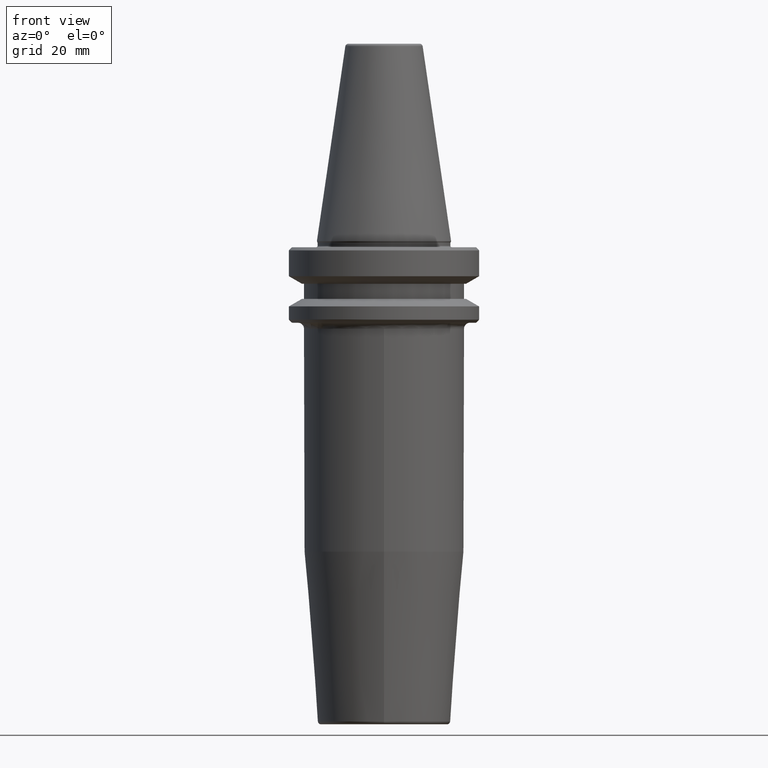
[diagram: clean part render]
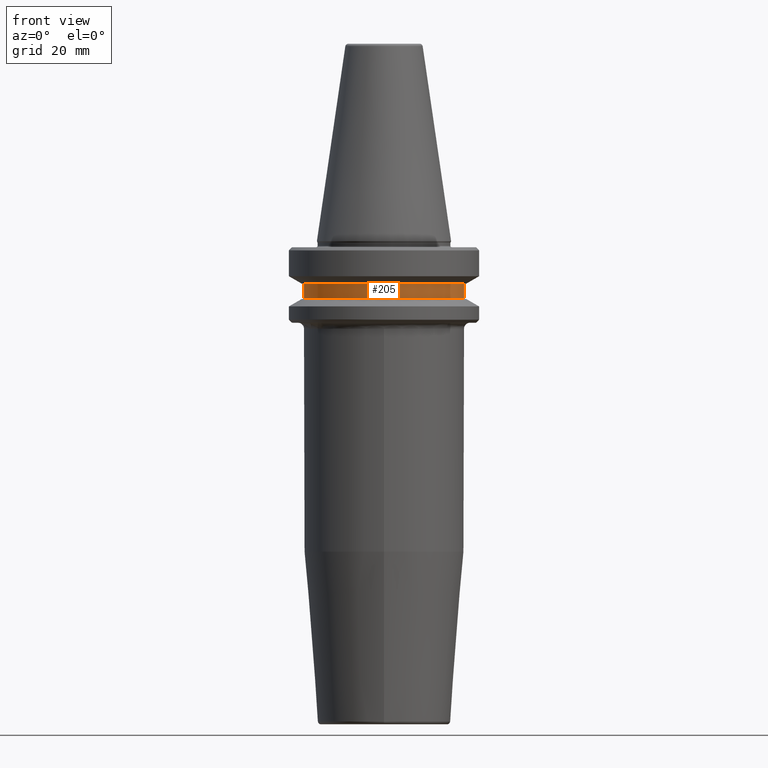
[diagram: same view with one face highlighted and labeled with its STEP entity id]
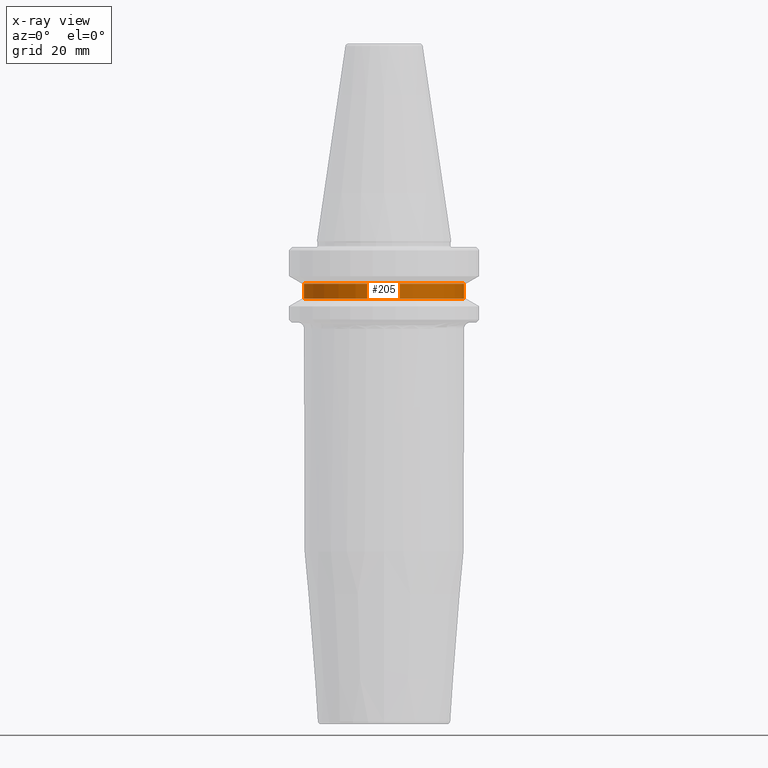
[diagram: x-ray of the same camera — body ghosted, the highlighted face saturated]
A machine part, front view. The second image highlights one B-rep face of the part: STEP entity #205.
The next image is the same camera in x-ray: the body ghosted, the highlighted face saturated — about 0% of this face is hidden behind the body in this view.
In plain terms, the highlighted cylindrical surface (partial cylindrical patch) has radius 26.5 mm, axis along (-0, -0, 1).
Its self-contained STEP definition (entity closure, byte-faithful):
#73 = CIRCLE ( 'NONE', #947, 26.50000000000000000 ) ;
#103 = ORIENTED_EDGE ( 'NONE', *, *, #201, .T. ) ;
#111 = EDGE_CURVE ( 'NONE', #567, #152, #73, .T. ) ;
#121 = EDGE_LOOP ( 'NONE', ( #484, #1139, #103, #215 ) ) ;
#152 = VERTEX_POINT ( 'NONE', #868 ) ;
#162 = DIRECTION ( 'NONE',  ( -0.0000000000000000000, -0.0000000000000000000, 1.000000000000000000 ) ) ;
#192 = DIRECTION ( 'NONE',  ( -0.0000000000000000000, -0.0000000000000000000, 1.000000000000000000 ) ) ;
#201 = EDGE_CURVE ( 'NONE', #152, #722, #777, .T. ) ;
#205 = ADVANCED_FACE ( 'NONE', ( #1232 ), #717, .T. ) ;
#206 = LINE ( 'NONE', #958, #1197 ) ;
#215 = ORIENTED_EDGE ( 'NONE', *, *, #1223, .F. ) ;
#364 = VERTEX_POINT ( 'NONE', #1231 ) ;
#405 = AXIS2_PLACEMENT_3D ( 'NONE', #788, #192, #1273 ) ;
#484 = ORIENTED_EDGE ( 'NONE', *, *, #1265, .F. ) ;
#486 = VECTOR ( 'NONE', #985, 1000.000000000000000 ) ;
#564 = CARTESIAN_POINT ( 'NONE',  ( 0.0000000000000000000, 0.0000000000000000000, -19.10000000000000500 ) ) ;
#567 = VERTEX_POINT ( 'NONE', #1056 ) ;
#572 = CARTESIAN_POINT ( 'NONE',  ( 0.0000000000000000000, 0.0000000000000000000, -14.10000000000000100 ) ) ;
#671 = DIRECTION ( 'NONE',  ( 1.000000000000000000, 0.0000000000000000000, 0.0000000000000000000 ) ) ;
#674 = DIRECTION ( 'NONE',  ( -0.0000000000000000000, -0.0000000000000000000, 1.000000000000000000 ) ) ;
#687 = AXIS2_PLACEMENT_3D ( 'NONE', #572, #1249, #671 ) ;
#717 = CYLINDRICAL_SURFACE ( 'NONE', #405, 26.50000000000000000 ) ;
#722 = VERTEX_POINT ( 'NONE', #1177 ) ;
#737 = DIRECTION ( 'NONE',  ( 1.000000000000000000, 0.0000000000000000000, 0.0000000000000000000 ) ) ;
#777 = LINE ( 'NONE', #791, #486 ) ;
#788 = CARTESIAN_POINT ( 'NONE',  ( 0.0000000000000000000, 0.0000000000000000000, 69.75694866325665100 ) ) ;
#791 = CARTESIAN_POINT ( 'NONE',  ( 26.50000000000000000, 0.0000000000000000000, 69.75694866325665100 ) ) ;
#868 = CARTESIAN_POINT ( 'NONE',  ( 26.50000000000000000, 0.0000000000000000000, -19.10000000000000500 ) ) ;
#947 = AXIS2_PLACEMENT_3D ( 'NONE', #564, #162, #737 ) ;
#958 = CARTESIAN_POINT ( 'NONE',  ( -26.50000000000000000, 3.245314017740485800E-015, 69.75694866325665100 ) ) ;
#964 = CIRCLE ( 'NONE', #687, 26.50000000000000000 ) ;
#985 = DIRECTION ( 'NONE',  ( -0.0000000000000000000, -0.0000000000000000000, 1.000000000000000000 ) ) ;
#1056 = CARTESIAN_POINT ( 'NONE',  ( -26.50000000000000000, 3.245314017740485800E-015, -19.10000000000000500 ) ) ;
#1139 = ORIENTED_EDGE ( 'NONE', *, *, #111, .T. ) ;
#1177 = CARTESIAN_POINT ( 'NONE',  ( 26.50000000000000000, 0.0000000000000000000, -14.10000000000000100 ) ) ;
#1197 = VECTOR ( 'NONE', #674, 1000.000000000000000 ) ;
#1223 = EDGE_CURVE ( 'NONE', #364, #722, #964, .T. ) ;
#1231 = CARTESIAN_POINT ( 'NONE',  ( -26.50000000000000000, 3.245314017740485800E-015, -14.10000000000000100 ) ) ;
#1232 = FACE_OUTER_BOUND ( 'NONE', #121, .T. ) ;
#1249 = DIRECTION ( 'NONE',  ( -0.0000000000000000000, -0.0000000000000000000, 1.000000000000000000 ) ) ;
#1265 = EDGE_CURVE ( 'NONE', #567, #364, #206, .T. ) ;
#1273 = DIRECTION ( 'NONE',  ( 1.000000000000000000, 0.0000000000000000000, 0.0000000000000000000 ) ) ;